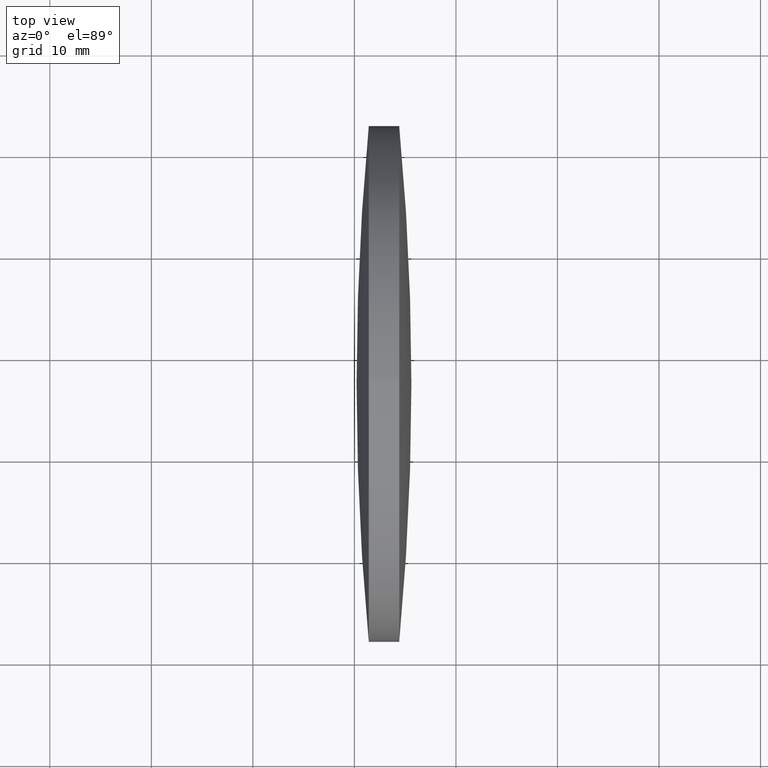
[diagram: clean part render]
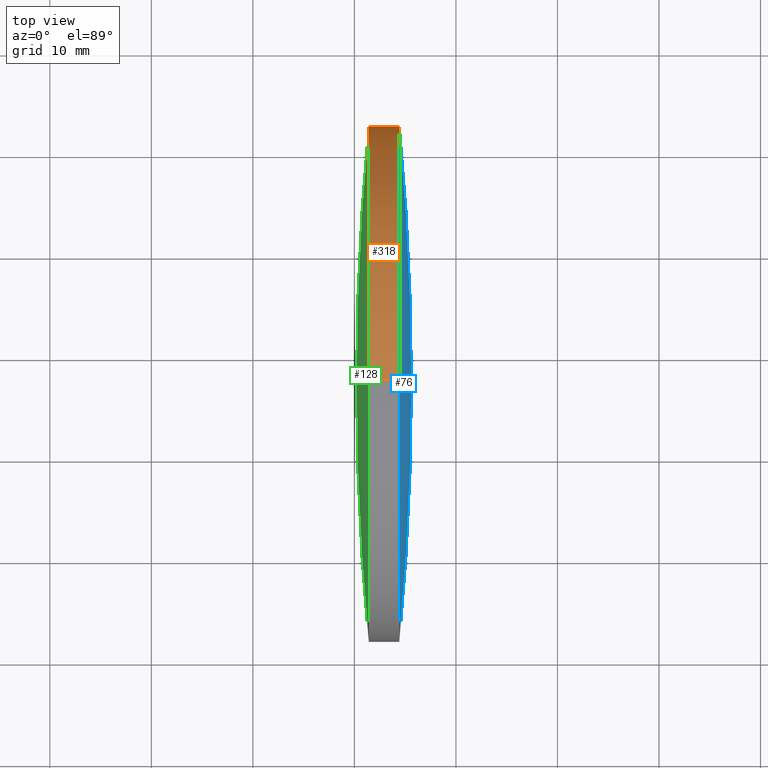
[diagram: same view with three faces highlighted in distinct colors, each labeled with its STEP entity id]
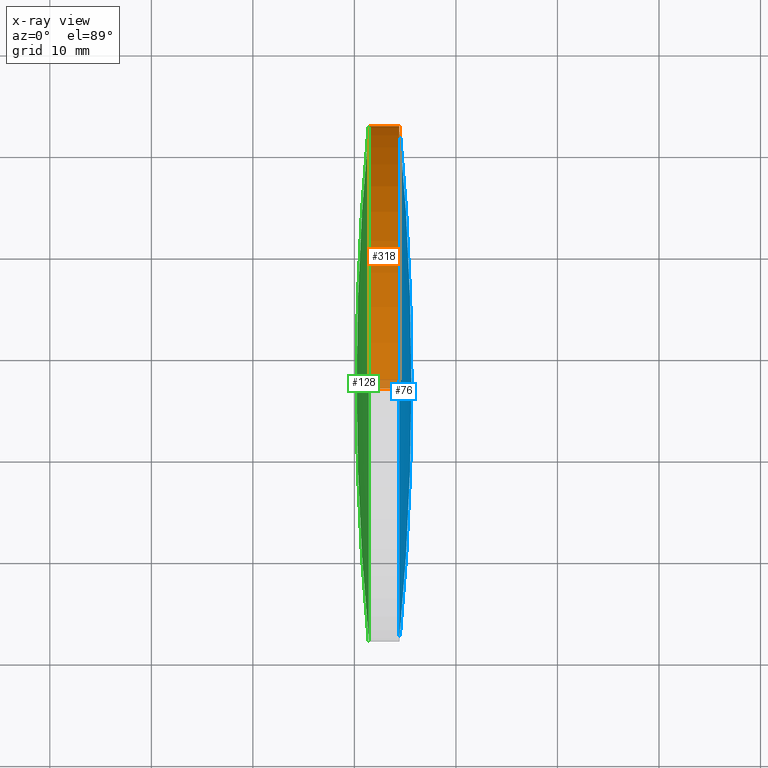
[diagram: x-ray of the same camera — body ghosted, the three highlighted faces saturated]
A machine part, top view with three faces highlighted in distinct colors.
The next image is the same camera in x-ray (body ghosted, the three faces saturated) — at least one of them is partly hidden behind the body in this view.
Their STEP definitions:

[orange] entity #318 — the highlighted cylindrical surface (partial cylindrical patch) has radius 25.4 mm, axis along (-1, -0, -0).
#1 = DIRECTION ( 'NONE',  ( 0.0000000000000000000, 0.0000000000000000000, 1.000000000000000000 ) ) ;
#20 = ORIENTED_EDGE ( 'NONE', *, *, #184, .T. ) ;
#23 = DIRECTION ( 'NONE',  ( -1.000000000000000000, -0.0000000000000000000, -0.0000000000000000000 ) ) ;
#24 = DIRECTION ( 'NONE',  ( -1.000000000000000000, -0.0000000000000000000, -0.0000000000000000000 ) ) ;
#25 = CIRCLE ( 'NONE', #260, 25.39999999999999100 ) ;
#27 = AXIS2_PLACEMENT_3D ( 'NONE', #215, #58, #1 ) ;
#35 = VERTEX_POINT ( 'NONE', #177 ) ;
#42 = VERTEX_POINT ( 'NONE', #65 ) ;
#58 = DIRECTION ( 'NONE',  ( -1.000000000000000000, -0.0000000000000000000, -0.0000000000000000000 ) ) ;
#63 = ORIENTED_EDGE ( 'NONE', *, *, #277, .F. ) ;
#65 = CARTESIAN_POINT ( 'NONE',  ( 174.4163664064679400, 122.6322260463694200, 0.0000000000000000000 ) ) ;
#75 = CARTESIAN_POINT ( 'NONE',  ( 165.7441079421506900, 97.23222604636956100, 25.39999999999999100 ) ) ;
#78 = VECTOR ( 'NONE', #258, 1000.000000000000000 ) ;
#82 = DIRECTION ( 'NONE',  ( -1.000000000000000000, -0.0000000000000000000, -0.0000000000000000000 ) ) ;
#83 = EDGE_CURVE ( 'NONE', #213, #241, #219, .T. ) ;
#102 = AXIS2_PLACEMENT_3D ( 'NONE', #294, #82, #192 ) ;
#104 = CARTESIAN_POINT ( 'NONE',  ( 174.4163664064679400, 97.23222604636956100, 0.0000000000000000000 ) ) ;
#120 = AXIS2_PLACEMENT_3D ( 'NONE', #208, #203, #253 ) ;
#127 = CARTESIAN_POINT ( 'NONE',  ( 174.4163664064679400, 97.23222604636956100, 25.39999999999999100 ) ) ;
#133 = CARTESIAN_POINT ( 'NONE',  ( 171.4164086921822200, 97.23222604636956100, -25.39999999999999100 ) ) ;
#137 = FACE_OUTER_BOUND ( 'NONE', #195, .T. ) ;
#155 = CIRCLE ( 'NONE', #289, 25.39999999999999100 ) ;
#177 = CARTESIAN_POINT ( 'NONE',  ( 174.4163664064679400, 97.23222604636956100, -25.39999999999999100 ) ) ;
#184 = EDGE_CURVE ( 'NONE', #251, #42, #155, .T. ) ;
#187 = CARTESIAN_POINT ( 'NONE',  ( 171.4164086921822200, 97.23222604636956100, 0.0000000000000000000 ) ) ;
#192 = DIRECTION ( 'NONE',  ( 0.0000000000000000000, 0.0000000000000000000, 1.000000000000000000 ) ) ;
#195 = EDGE_LOOP ( 'NONE', ( #229, #306, #248, #237, #63, #20 ) ) ;
#203 = DIRECTION ( 'NONE',  ( -1.000000000000000000, -0.0000000000000000000, -0.0000000000000000000 ) ) ;
#208 = CARTESIAN_POINT ( 'NONE',  ( 171.4164086921822200, 97.23222604636956100, 0.0000000000000000000 ) ) ;
#209 = CARTESIAN_POINT ( 'NONE',  ( 165.7441079421506900, 97.23222604636956100, -25.39999999999999100 ) ) ;
#210 = VECTOR ( 'NONE', #24, 1000.000000000000000 ) ;
#211 = DIRECTION ( 'NONE',  ( 0.0000000000000000000, 0.0000000000000000000, 1.000000000000000000 ) ) ;
#213 = VERTEX_POINT ( 'NONE', #230 ) ;
#215 = CARTESIAN_POINT ( 'NONE',  ( 174.4163664064679400, 97.23222604636956100, 0.0000000000000000000 ) ) ;
#219 = CIRCLE ( 'NONE', #120, 25.39999999999999100 ) ;
#222 = EDGE_CURVE ( 'NONE', #241, #225, #25, .T. ) ;
#225 = VERTEX_POINT ( 'NONE', #133 ) ;
#229 = ORIENTED_EDGE ( 'NONE', *, *, #298, .T. ) ;
#230 = CARTESIAN_POINT ( 'NONE',  ( 171.4164086921822200, 97.23222604636956100, 25.39999999999999100 ) ) ;
#237 = ORIENTED_EDGE ( 'NONE', *, *, #83, .F. ) ;
#241 = VERTEX_POINT ( 'NONE', #313 ) ;
#242 = LINE ( 'NONE', #209, #210 ) ;
#248 = ORIENTED_EDGE ( 'NONE', *, *, #222, .F. ) ;
#251 = VERTEX_POINT ( 'NONE', #127 ) ;
#253 = DIRECTION ( 'NONE',  ( 0.0000000000000000000, 0.0000000000000000000, 1.000000000000000000 ) ) ;
#258 = DIRECTION ( 'NONE',  ( -1.000000000000000000, -0.0000000000000000000, -0.0000000000000000000 ) ) ;
#260 = AXIS2_PLACEMENT_3D ( 'NONE', #187, #23, #211 ) ;
#273 = EDGE_CURVE ( 'NONE', #35, #225, #242, .T. ) ;
#277 = EDGE_CURVE ( 'NONE', #251, #213, #283, .T. ) ;
#283 = LINE ( 'NONE', #75, #78 ) ;
#289 = AXIS2_PLACEMENT_3D ( 'NONE', #104, #342, #312 ) ;
#294 = CARTESIAN_POINT ( 'NONE',  ( 165.7441079421506900, 97.23222604636956100, 0.0000000000000000000 ) ) ;
#298 = EDGE_CURVE ( 'NONE', #42, #35, #344, .T. ) ;
#305 = CYLINDRICAL_SURFACE ( 'NONE', #102, 25.39999999999999100 ) ;
#306 = ORIENTED_EDGE ( 'NONE', *, *, #273, .T. ) ;
#312 = DIRECTION ( 'NONE',  ( 0.0000000000000000000, 0.0000000000000000000, 1.000000000000000000 ) ) ;
#313 = CARTESIAN_POINT ( 'NONE',  ( 171.4164086921822200, 122.6322260463694800, 0.0000000000000000000 ) ) ;
#318 = ADVANCED_FACE ( 'NONE', ( #137 ), #305, .T. ) ;
#342 = DIRECTION ( 'NONE',  ( -1.000000000000000000, -0.0000000000000000000, -0.0000000000000000000 ) ) ;
#344 = CIRCLE ( 'NONE', #27, 25.39999999999999100 ) ;

[blue] entity #76 — the highlighted spherical surface has radius 269.424 mm.
#2 = AXIS2_PLACEMENT_3D ( 'NONE', #316, #159, #51 ) ;
#9 = ORIENTED_EDGE ( 'NONE', *, *, #267, .T. ) ;
#18 = CARTESIAN_POINT ( 'NONE',  ( -93.80735659540891900, 97.23222604636887900, 0.0000000000000000000 ) ) ;
#42 = VERTEX_POINT ( 'NONE', #65 ) ;
#45 = CIRCLE ( 'NONE', #2, 269.4236915733053500 ) ;
#47 = AXIS2_PLACEMENT_3D ( 'NONE', #343, #101, #285 ) ;
#51 = DIRECTION ( 'NONE',  ( 1.000000000000000000, 0.0000000000000000000, 0.0000000000000000000 ) ) ;
#56 = VERTEX_POINT ( 'NONE', #67 ) ;
#65 = CARTESIAN_POINT ( 'NONE',  ( 174.4163664064679400, 122.6322260463694200, 0.0000000000000000000 ) ) ;
#67 = CARTESIAN_POINT ( 'NONE',  ( 174.4163664064679400, 71.83222604636903000, -3.110602869834258700E-015 ) ) ;
#71 = ORIENTED_EDGE ( 'NONE', *, *, #94, .F. ) ;
#72 = DIRECTION ( 'NONE',  ( 0.0000000000000000000, 1.224646799147353200E-016, -1.000000000000000000 ) ) ;
#76 = ADVANCED_FACE ( 'NONE', ( #199 ), #124, .T. ) ;
#79 = ORIENTED_EDGE ( 'NONE', *, *, #239, .F. ) ;
#94 = EDGE_CURVE ( 'NONE', #272, #56, #202, .T. ) ;
#101 = DIRECTION ( 'NONE',  ( -1.000000000000000000, -0.0000000000000000000, -0.0000000000000000000 ) ) ;
#104 = CARTESIAN_POINT ( 'NONE',  ( 174.4163664064679400, 97.23222604636956100, 0.0000000000000000000 ) ) ;
#119 = EDGE_LOOP ( 'NONE', ( #71, #9, #288, #79 ) ) ;
#124 = SPHERICAL_SURFACE ( 'NONE', #130, 269.4236915733053500 ) ;
#125 = DIRECTION ( 'NONE',  ( 0.0000000000000000000, 1.000000000000000000, 1.224646799147353500E-016 ) ) ;
#127 = CARTESIAN_POINT ( 'NONE',  ( 174.4163664064679400, 97.23222604636956100, 25.39999999999999100 ) ) ;
#130 = AXIS2_PLACEMENT_3D ( 'NONE', #18, #181, #339 ) ;
#132 = CARTESIAN_POINT ( 'NONE',  ( 175.6163349778964600, 97.23222604636889300, 0.0000000000000000000 ) ) ;
#155 = CIRCLE ( 'NONE', #289, 25.39999999999999100 ) ;
#159 = DIRECTION ( 'NONE',  ( -0.0000000000000000000, 0.0000000000000000000, 1.000000000000000000 ) ) ;
#178 = CIRCLE ( 'NONE', #47, 25.39999999999999100 ) ;
#181 = DIRECTION ( 'NONE',  ( -0.0000000000000000000, 0.0000000000000000000, -1.000000000000000000 ) ) ;
#184 = EDGE_CURVE ( 'NONE', #251, #42, #155, .T. ) ;
#199 = FACE_OUTER_BOUND ( 'NONE', #119, .T. ) ;
#202 = CIRCLE ( 'NONE', #255, 269.4236915733053500 ) ;
#239 = EDGE_CURVE ( 'NONE', #56, #251, #178, .T. ) ;
#251 = VERTEX_POINT ( 'NONE', #127 ) ;
#254 = CARTESIAN_POINT ( 'NONE',  ( -93.80735659540891900, 97.23222604636887900, 0.0000000000000000000 ) ) ;
#255 = AXIS2_PLACEMENT_3D ( 'NONE', #254, #72, #125 ) ;
#267 = EDGE_CURVE ( 'NONE', #272, #42, #45, .T. ) ;
#272 = VERTEX_POINT ( 'NONE', #132 ) ;
#285 = DIRECTION ( 'NONE',  ( 0.0000000000000000000, 0.0000000000000000000, 1.000000000000000000 ) ) ;
#288 = ORIENTED_EDGE ( 'NONE', *, *, #184, .F. ) ;
#289 = AXIS2_PLACEMENT_3D ( 'NONE', #104, #342, #312 ) ;
#312 = DIRECTION ( 'NONE',  ( 0.0000000000000000000, 0.0000000000000000000, 1.000000000000000000 ) ) ;
#316 = CARTESIAN_POINT ( 'NONE',  ( -93.80735659540891900, 97.23222604636887900, 0.0000000000000000000 ) ) ;
#339 = DIRECTION ( 'NONE',  ( 0.0000000000000000000, 1.000000000000000000, 0.0000000000000000000 ) ) ;
#342 = DIRECTION ( 'NONE',  ( -1.000000000000000000, -0.0000000000000000000, -0.0000000000000000000 ) ) ;
#343 = CARTESIAN_POINT ( 'NONE',  ( 174.4163664064679400, 97.23222604636956100, 0.0000000000000000000 ) ) ;

[green] entity #128 — the highlighted spherical surface has radius 269.424 mm.
#6 = CIRCLE ( 'NONE', #234, 25.39999999999999100 ) ;
#16 = CIRCLE ( 'NONE', #227, 269.4236915733057500 ) ;
#22 = DIRECTION ( 'NONE',  ( 0.0000000000000000000, 1.000000000000000000, 0.0000000000000000000 ) ) ;
#34 = EDGE_CURVE ( 'NONE', #54, #309, #16, .T. ) ;
#38 = CARTESIAN_POINT ( 'NONE',  ( 439.6401316940594500, 97.23222604636900700, 0.0000000000000000000 ) ) ;
#41 = DIRECTION ( 'NONE',  ( 0.0000000000000000000, 1.224646799147353200E-016, -1.000000000000000000 ) ) ;
#50 = CARTESIAN_POINT ( 'NONE',  ( 170.2164401207537000, 97.23222604636902100, 0.0000000000000000000 ) ) ;
#53 = CARTESIAN_POINT ( 'NONE',  ( 171.4164086921822200, 97.23222604636956100, 0.0000000000000000000 ) ) ;
#54 = VERTEX_POINT ( 'NONE', #145 ) ;
#55 = EDGE_CURVE ( 'NONE', #241, #309, #337, .T. ) ;
#83 = EDGE_CURVE ( 'NONE', #213, #241, #219, .T. ) ;
#91 = FACE_OUTER_BOUND ( 'NONE', #153, .T. ) ;
#100 = DIRECTION ( 'NONE',  ( 1.000000000000000000, 0.0000000000000000000, 0.0000000000000000000 ) ) ;
#112 = ORIENTED_EDGE ( 'NONE', *, *, #172, .T. ) ;
#120 = AXIS2_PLACEMENT_3D ( 'NONE', #208, #203, #253 ) ;
#128 = ADVANCED_FACE ( 'NONE', ( #91 ), #152, .T. ) ;
#131 = DIRECTION ( 'NONE',  ( -0.0000000000000000000, 0.0000000000000000000, -1.000000000000000000 ) ) ;
#143 = ORIENTED_EDGE ( 'NONE', *, *, #34, .F. ) ;
#145 = CARTESIAN_POINT ( 'NONE',  ( 171.4164086921822200, 71.83222604636910100, -3.110602869834266600E-015 ) ) ;
#152 = SPHERICAL_SURFACE ( 'NONE', #161, 269.4236915733057500 ) ;
#153 = EDGE_LOOP ( 'NONE', ( #143, #112, #327, #330 ) ) ;
#157 = DIRECTION ( 'NONE',  ( 0.0000000000000000000, 0.0000000000000000000, 1.000000000000000000 ) ) ;
#161 = AXIS2_PLACEMENT_3D ( 'NONE', #188, #131, #22 ) ;
#172 = EDGE_CURVE ( 'NONE', #54, #213, #6, .T. ) ;
#188 = CARTESIAN_POINT ( 'NONE',  ( 439.6401316940594500, 97.23222604636900700, 0.0000000000000000000 ) ) ;
#203 = DIRECTION ( 'NONE',  ( -1.000000000000000000, -0.0000000000000000000, -0.0000000000000000000 ) ) ;
#208 = CARTESIAN_POINT ( 'NONE',  ( 171.4164086921822200, 97.23222604636956100, 0.0000000000000000000 ) ) ;
#213 = VERTEX_POINT ( 'NONE', #230 ) ;
#219 = CIRCLE ( 'NONE', #120, 25.39999999999999100 ) ;
#223 = DIRECTION ( 'NONE',  ( 0.0000000000000000000, 1.000000000000000000, 1.224646799147353500E-016 ) ) ;
#227 = AXIS2_PLACEMENT_3D ( 'NONE', #38, #41, #223 ) ;
#230 = CARTESIAN_POINT ( 'NONE',  ( 171.4164086921822200, 97.23222604636956100, 25.39999999999999100 ) ) ;
#234 = AXIS2_PLACEMENT_3D ( 'NONE', #53, #235, #157 ) ;
#235 = DIRECTION ( 'NONE',  ( -1.000000000000000000, -0.0000000000000000000, -0.0000000000000000000 ) ) ;
#241 = VERTEX_POINT ( 'NONE', #313 ) ;
#244 = AXIS2_PLACEMENT_3D ( 'NONE', #334, #278, #100 ) ;
#253 = DIRECTION ( 'NONE',  ( 0.0000000000000000000, 0.0000000000000000000, 1.000000000000000000 ) ) ;
#278 = DIRECTION ( 'NONE',  ( -0.0000000000000000000, 0.0000000000000000000, 1.000000000000000000 ) ) ;
#309 = VERTEX_POINT ( 'NONE', #50 ) ;
#313 = CARTESIAN_POINT ( 'NONE',  ( 171.4164086921822200, 122.6322260463694800, 0.0000000000000000000 ) ) ;
#327 = ORIENTED_EDGE ( 'NONE', *, *, #83, .T. ) ;
#330 = ORIENTED_EDGE ( 'NONE', *, *, #55, .T. ) ;
#334 = CARTESIAN_POINT ( 'NONE',  ( 439.6401316940594500, 97.23222604636900700, 0.0000000000000000000 ) ) ;
#337 = CIRCLE ( 'NONE', #244, 269.4236915733056900 ) ;